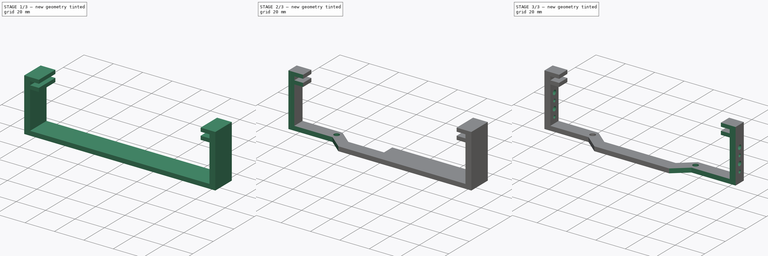
[diagram: build sequence overview — one tinted view per stage of 3, left to right]
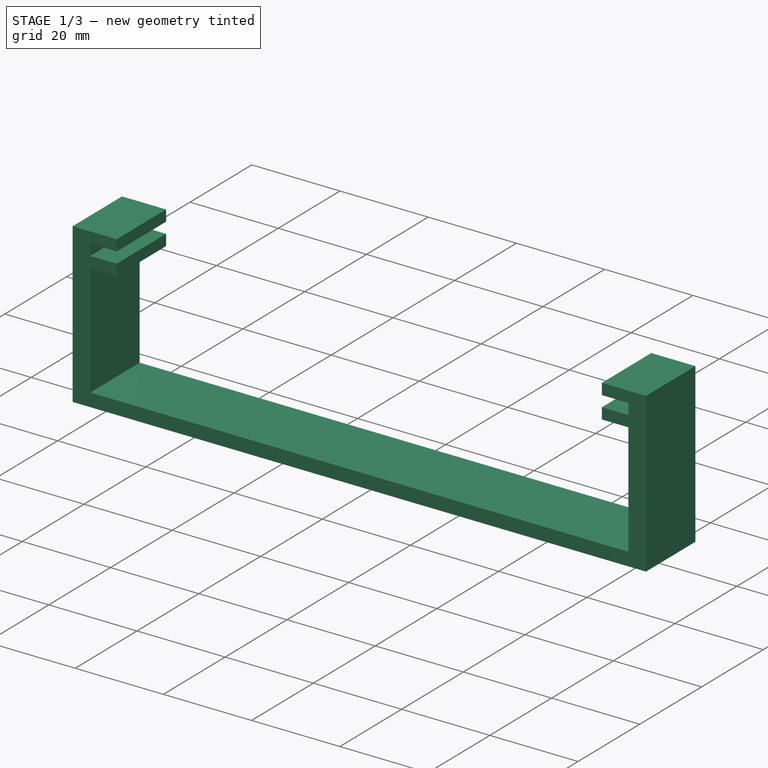
[diagram: stage 1 of 3 — iso view after this stage's code; geometry added in this stage tinted green]
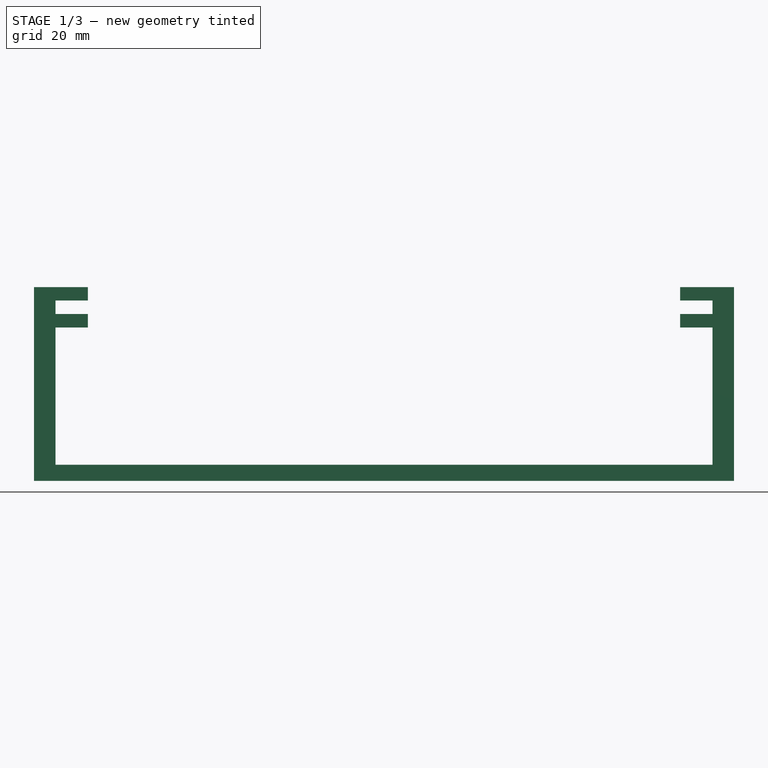
[diagram: stage 1 of 3 — front view after this stage's code; geometry added in this stage tinted green]
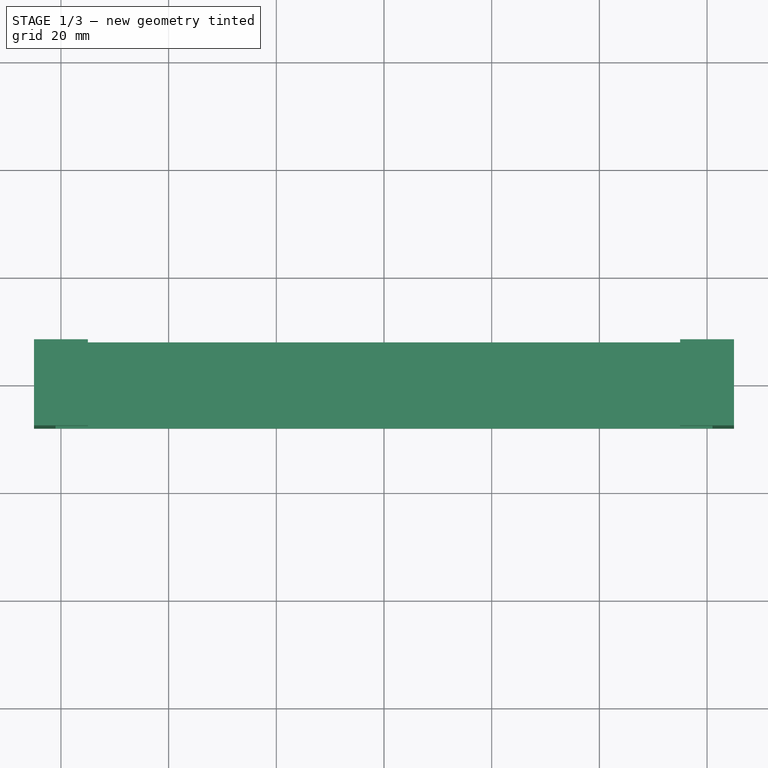
[diagram: stage 1 of 3 — top view after this stage's code; geometry added in this stage tinted green]
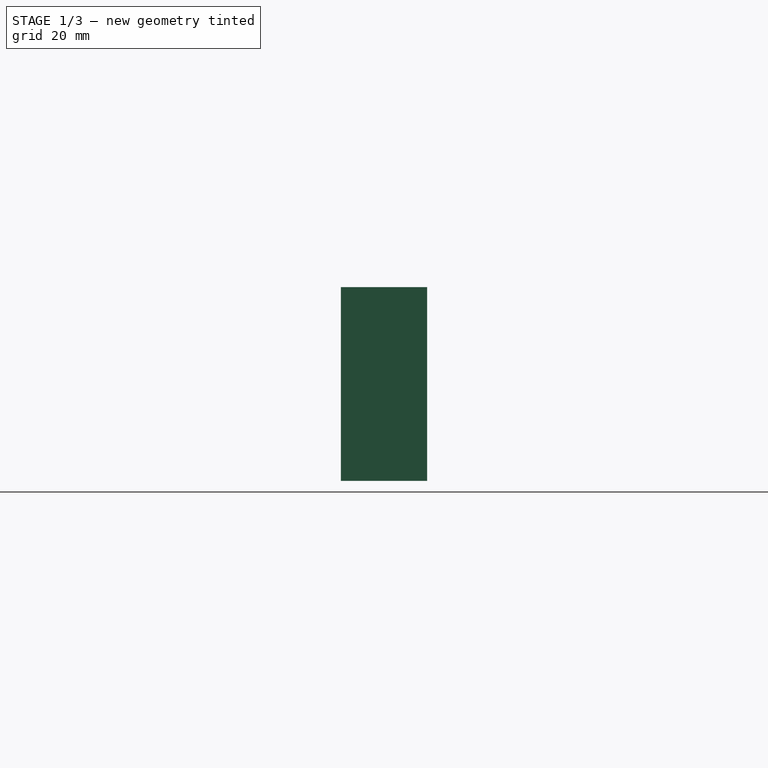
[diagram: stage 1 of 3 — right view after this stage's code; geometry added in this stage tinted green]
FCSTD DOCUMENT  (FreeCAD 0.18.4R)
Label: gpuintake
License: All rights reserved
LicenseURL: http://en.wikipedia.org/wiki/All_rights_reserved
objects: Sketcher::SketchObject×3, PartDesign::Mirrored×2, PartDesign::Pocket×2, PartDesign::Pad×1, PartDesign::Body×1
note: 12 computed .brp shape members not serialized (recipe doc carries the construction recipe); baked Part::Feature solids carry a one-line shape summary decoded from their .brp

FEATURE [Sketcher::SketchObject] Sketch001
  MapMode = 5
  Placement = pos=(0,0,0) rot=(1,0,0;1.5708rad)
  Support = -> [XZ_Plane]
  sketch-geometry (12):
    g0: LineSegment StartX=-65 StartY=36 StartZ=0 EndX=-65 EndY=0 EndZ=0
    g1: LineSegment StartX=-65 StartY=0 StartZ=0 EndX=0 EndY=0 EndZ=0
    g2: LineSegment StartX=0 StartY=0 StartZ=0 EndX=0 EndY=3 EndZ=0
    g3: LineSegment StartX=0 StartY=3 StartZ=0 EndX=-61 EndY=3 EndZ=0
    g4: LineSegment StartX=-61 StartY=3 StartZ=0 EndX=-61 EndY=28.5 EndZ=0
    g5: LineSegment StartX=-61 StartY=28.5 StartZ=0 EndX=-55 EndY=28.5 EndZ=0
    g6: LineSegment StartX=-55 StartY=28.5 StartZ=0 EndX=-55 EndY=31 EndZ=0
    g7: LineSegment StartX=-55 StartY=31 StartZ=0 EndX=-61 EndY=31 EndZ=0
    g8: LineSegment StartX=-61 StartY=31 StartZ=0 EndX=-61 EndY=33.5 EndZ=0
    g9: LineSegment StartX=-61 StartY=33.5 StartZ=0 EndX=-55 EndY=33.5 EndZ=0
    g10: LineSegment StartX=-55 StartY=33.5 StartZ=0 EndX=-55 EndY=36 EndZ=0
    g11: LineSegment StartX=-55 StartY=36 StartZ=0 EndX=-65 EndY=36 EndZ=0
  constraints (36):
    c: PointOnObject(g0,g-1)
    c: Vertical(g0)
    c: Coincident(g0,g1)
    c: PointOnObject(g1,g-1)
    c: Coincident(g1,g2)
    c: Vertical(g2)
    c: Coincident(g2,g3)
    c: Horizontal(g3)
    c: Coincident(g3,g4)
    c: Vertical(g4)
    c: Coincident(g4,g5)
    c: Horizontal(g5)
    c: Coincident(g5,g6)
    c: Vertical(g6)
    c: Coincident(g6,g7)
    c: Horizontal(g7)
    c: Coincident(g7,g8)
    c: Vertical(g8)
    c: Coincident(g8,g9)
    c: Horizontal(g9)
    c: Coincident(g9,g10)
    c: Vertical(g10)
    c: Coincident(g10,g11)
    c: Coincident(g11,g0)
    c: Horizontal(g11)
    c: Equal(g10,g8)
    c: Equal(g5,g7)
    c: DistanceY(g8,g8) = 2.5
    c: DistanceX(g7) = -61
    c: DistanceX(g5,g5) = 6
    c: DistanceX(g11,g11) = 10
    c: Equal(g9,g7)
    c: DistanceY(g2,g2) = 3
    c: DistanceX(g3,g3) = 61
    c: DistanceY(g4,g4) = 25.5
    c: Equal(g6,g10)
FEATURE [PartDesign::Pad] Pad
  Length = 16
  Length2 = 100
  Midplane = true
  Placement = pos=(0,0,0) rot=(1,0,0;1.5708rad)
  Profile = -> Sketch001
  Type = 0
FEATURE [PartDesign::Mirrored] Mirrored
  BaseFeature = -> Pad
  MirrorPlane = -> Sketch001 [V_Axis]
  Originals = -> [Pad]
  Placement = pos=(0,0,0) rot=(1,0,0;1.5708rad)
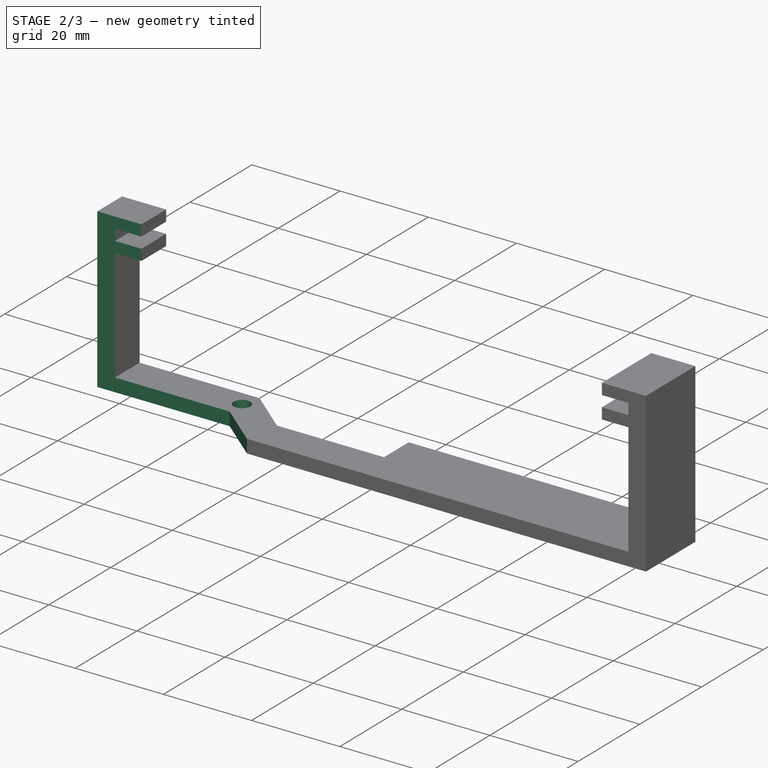
[diagram: stage 2 of 3 — iso view after this stage's code; geometry added in this stage tinted green]
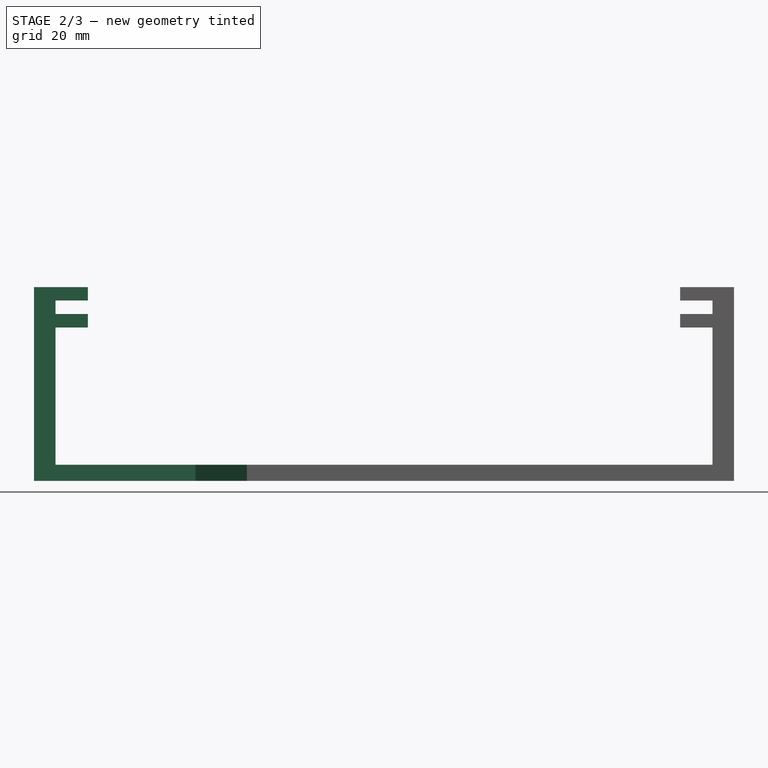
[diagram: stage 2 of 3 — front view after this stage's code; geometry added in this stage tinted green]
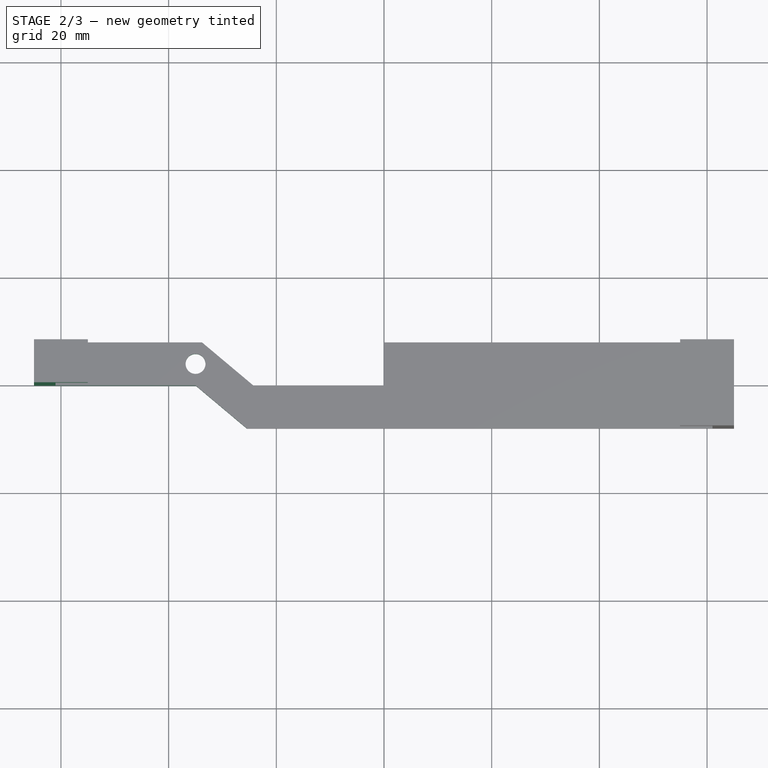
[diagram: stage 2 of 3 — top view after this stage's code; geometry added in this stage tinted green]
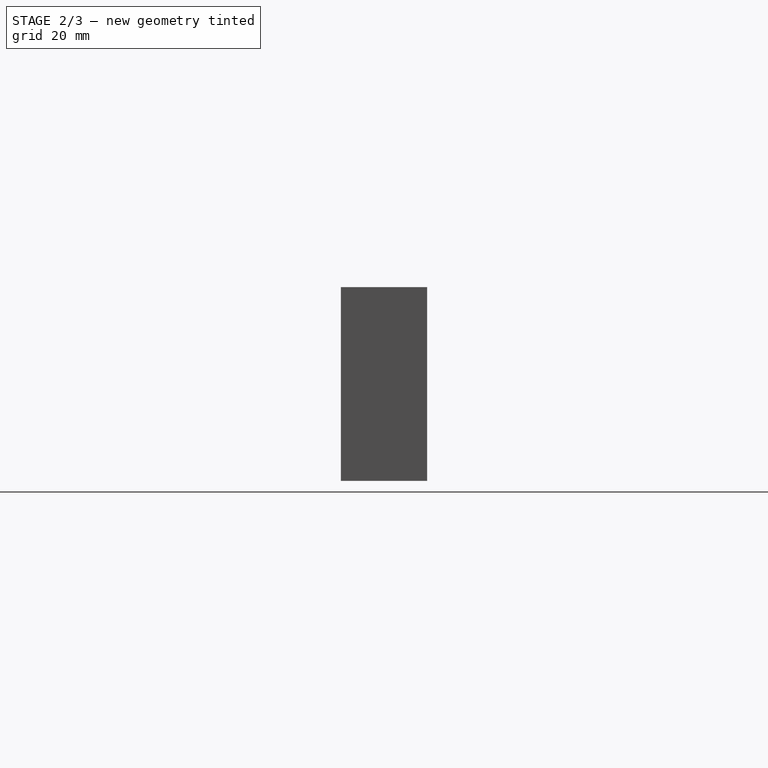
[diagram: stage 2 of 3 — right view after this stage's code; geometry added in this stage tinted green]
FEATURE [Sketcher::SketchObject] Sketch002
  AttachmentOffset = pos=(0,0,5) rot=(0,0,1;0rad)
  MapMode = 5
  Placement = pos=(0,0,5) rot=(0,0,1;0rad)
  Support = -> [XY_Plane]
  sketch-geometry (12):
    g0: Circle CenterX=-35 CenterY=4 CenterZ=0 NormalX=0 NormalY=0 NormalZ=1 AngleXU=0 Radius=1.85
    g1: Circle [constr] CenterX=35 CenterY=4 CenterZ=0 NormalX=0 NormalY=0 NormalZ=1 AngleXU=0 Radius=1.85
    g2: LineSegment [constr] StartX=-35 StartY=4 StartZ=0 EndX=35 EndY=4 EndZ=0
    g3: GeomPoint X=0 Y=4 Z=0
    g4: LineSegment StartX=-66 StartY=0 StartZ=0 EndX=-35 EndY=0 EndZ=0
    g5: LineSegment StartX=-35 StartY=0 StartZ=0 EndX=-24.2742 EndY=-9 EndZ=0
    g6: LineSegment StartX=-24.2742 StartY=-9 StartZ=0 EndX=-66 EndY=-9 EndZ=0
    g7: LineSegment StartX=-66 StartY=-9 StartZ=0 EndX=-66 EndY=0 EndZ=0
    g8: LineSegment StartX=-35 StartY=9 StartZ=0 EndX=-24.2742 EndY=0 EndZ=0
    g9: LineSegment StartX=-24.2742 StartY=0 StartZ=0 EndX=0 EndY=0 EndZ=0
    g10: LineSegment StartX=0 StartY=0 StartZ=0 EndX=0 EndY=9 EndZ=0
    g11: LineSegment StartX=0 StartY=9 StartZ=0 EndX=-35 EndY=9 EndZ=0
  constraints (32):
    c: Coincident(g2,g0)
    c: Coincident(g2,g1)
    c: DistanceX(g2,g2) = 70
    c: Symmetric(g0,g1,g-2)
    c: Diameter(g1) = 3.7
    c: Equal(g1,g0)
    c: PointOnObject(g3,g2)
    c: PointOnObject(g3,g-2)
    c: DistanceY(g-1,g3) = 4
    c: PointOnObject(g4,g-1)
    c: PointOnObject(g4,g-1)
    c: Coincident(g4,g5)
    c: Coincident(g5,g6)
    c: Horizontal(g6)
    c: Coincident(g6,g7)
    c: Coincident(g7,g4)
    c: Vertical(g7)
    c: Angle(g5,g6) = 0.698132
    c: Vertical(g4,g0)
    c: DistanceX(g4,g4) = 31
    c: DistanceY(g7,g7) = 9
    c: PointOnObject(g8,g-1)
    c: Coincident(g8,g9)
    c: Coincident(g9,g-1)
    c: Coincident(g9,g10)
    c: PointOnObject(g10,g-2)
    c: Coincident(g10,g11)
    c: Coincident(g11,g8)
    c: Horizontal(g11)
    c: Equal(g8,g5)
    c: Vertical(g8,g0)
    c: Parallel(g8,g5)
FEATURE [PartDesign::Pocket] Pocket  label="potong"
  BaseFeature = -> Mirrored
  Length = 5
  Length2 = 100
  Midplane = true
  Placement = pos=(0,0,0) rot=(1,0,0;1.5708rad)
  Profile = -> Sketch002
  Type = 1
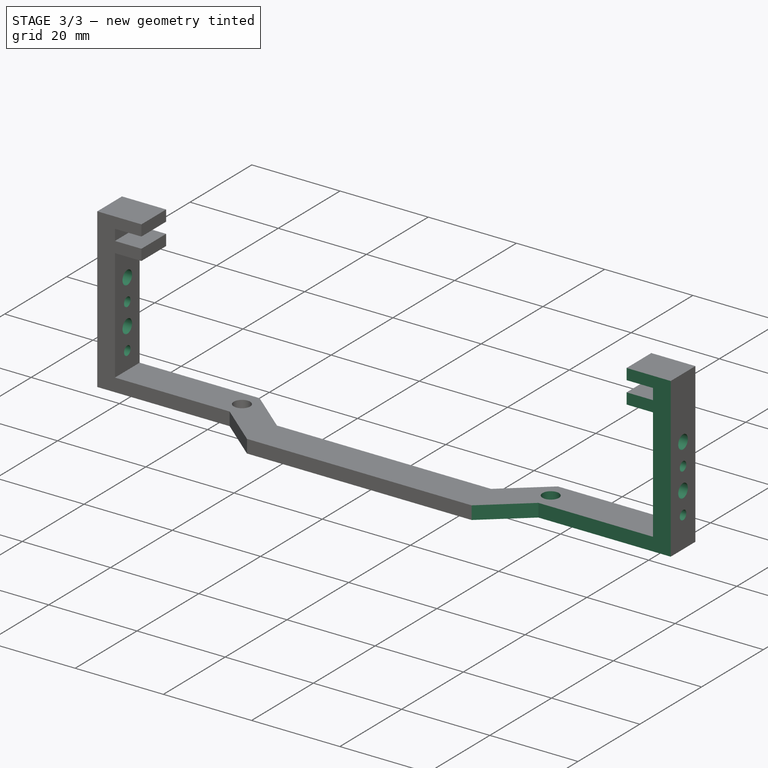
[diagram: stage 3 of 3 — iso view after this stage's code; geometry added in this stage tinted green]
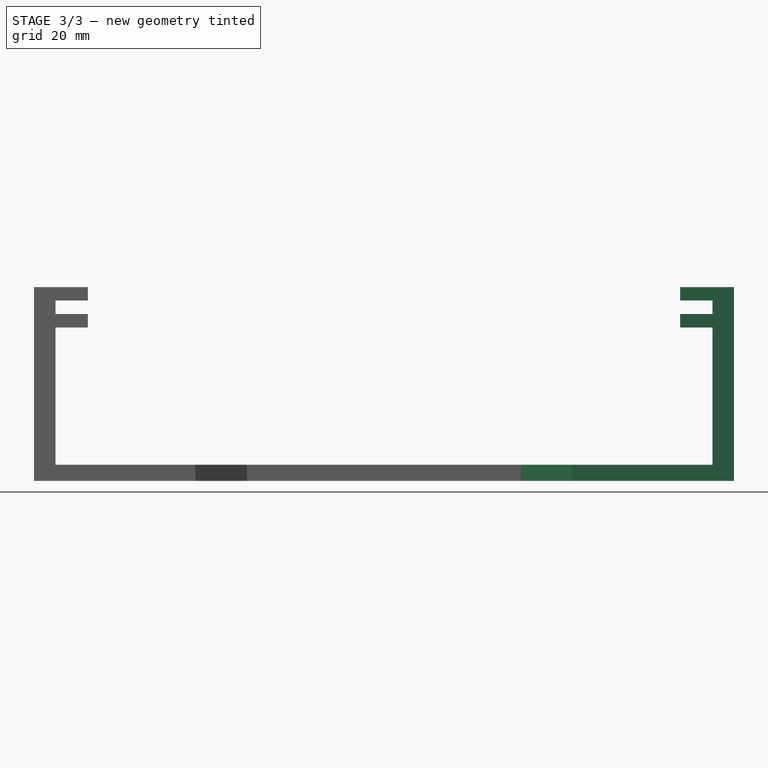
[diagram: stage 3 of 3 — front view after this stage's code; geometry added in this stage tinted green]
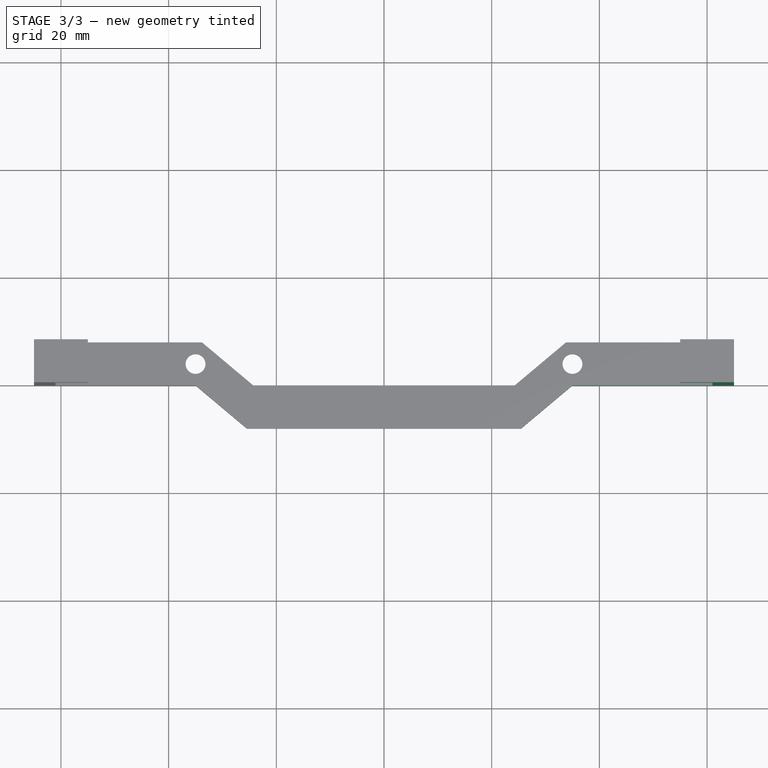
[diagram: stage 3 of 3 — top view after this stage's code; geometry added in this stage tinted green]
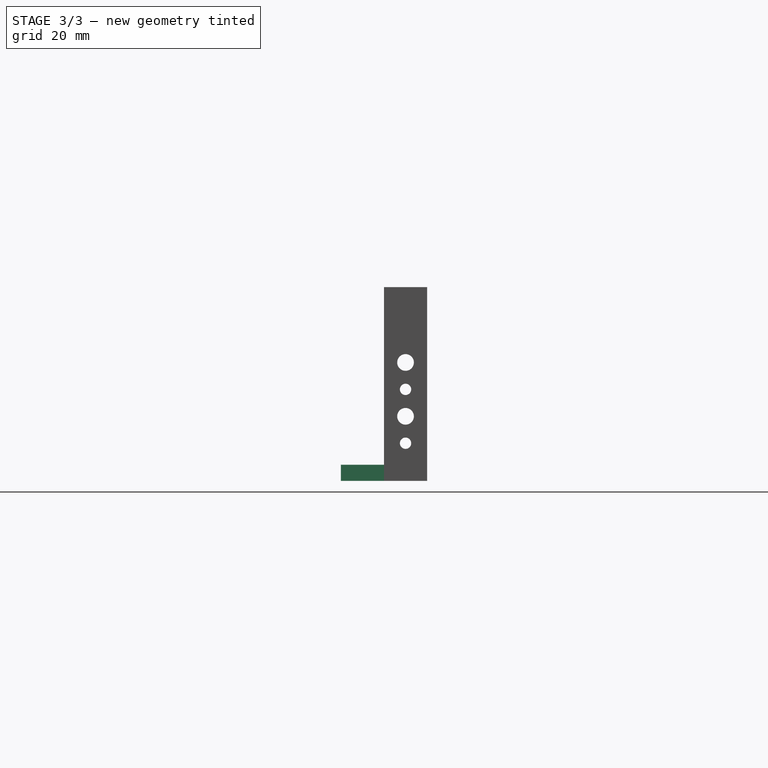
[diagram: stage 3 of 3 — right view after this stage's code; geometry added in this stage tinted green]
FEATURE [PartDesign::Mirrored] Mirrored001
  BaseFeature = -> Pocket
  MirrorPlane = -> Sketch002 [V_Axis]
  Originals = -> [Pocket]
  Placement = pos=(0,0,0) rot=(1,0,0;1.5708rad)
FEATURE [Sketcher::SketchObject] Sketch
  AttachmentOffset = pos=(0,0,70) rot=(0,0,1;0rad)
  MapMode = 5
  Placement = pos=(70,-1.55e-14,1.55e-14) rot=(0.57735,0.57735,0.57735;2.0944rad)
  Support = -> [YZ_Plane]
  sketch-geometry (5):
    g0: Circle CenterX=4 CenterY=12 CenterZ=0 NormalX=0 NormalY=0 NormalZ=1 AngleXU=0 Radius=1.55
    g1: Circle CenterX=4 CenterY=7 CenterZ=0 NormalX=0 NormalY=0 NormalZ=1 AngleXU=0 Radius=1.05
    g2: Circle CenterX=4 CenterY=17 CenterZ=0 NormalX=0 NormalY=0 NormalZ=1 AngleXU=0 Radius=1.05
    g3: Circle CenterX=4 CenterY=22 CenterZ=0 NormalX=0 NormalY=0 NormalZ=1 AngleXU=0 Radius=1.55
    g4: LineSegment [constr] StartX=4 StartY=22 StartZ=0 EndX=4 EndY=7 EndZ=0
  constraints (14):
    c: Vertical(g1,g0)
    c: Diameter(g0) = 3.1
    c: Diameter(g1) = 2.1
    c: DistanceY(g1,g0) = 5
    c: DistanceY(g1) = 7
    c: DistanceX(g1) = 4
    c: Coincident(g4,g3)
    c: Coincident(g4,g1)
    c: Vertical(g4)
    c: PointOnObject(g2,g4)
    c: Equal(g2,g1)
    c: Equal(g3,g0)
    c: DistanceY(g0,g2) = 5
    c: DistanceY(g2,g3) = 5
FEATURE [PartDesign::Pocket] Pocket001
  BaseFeature = -> Mirrored001
  Length = 5
  Length2 = 100
  Placement = pos=(0,0,0) rot=(1,0,0;1.5708rad)
  Profile = -> Sketch
  Type = 1
FEATURE [PartDesign::Body] Body  label="fanholder"
  Group = -> [Sketch001,Pad,Mirrored,Sketch002,Pocket,Mirrored001,Sketch,Pocket001]
  Origin = -> Origin
  Tip = -> Pocket001
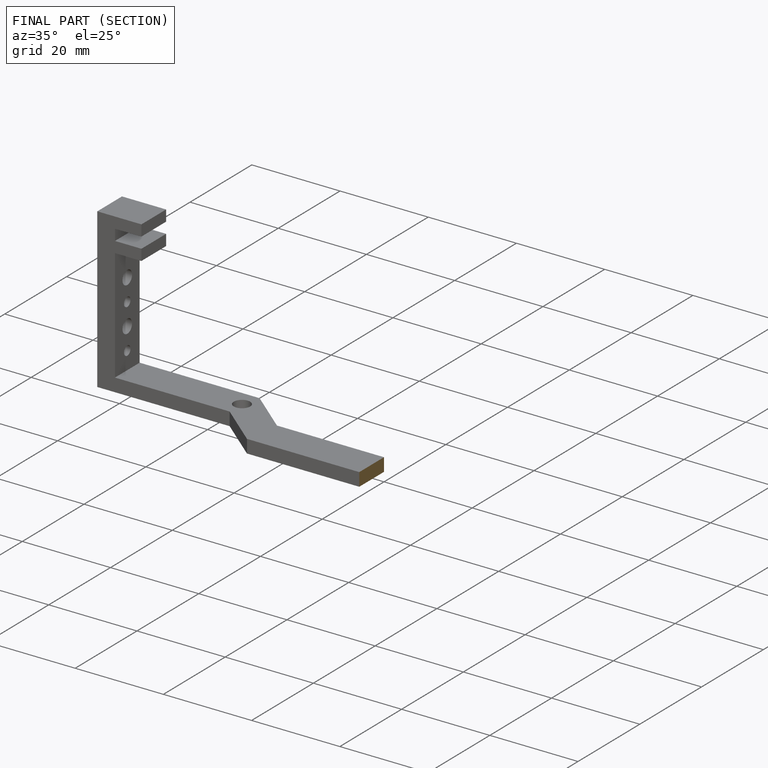
[diagram: finished part — half-section view (interior)]
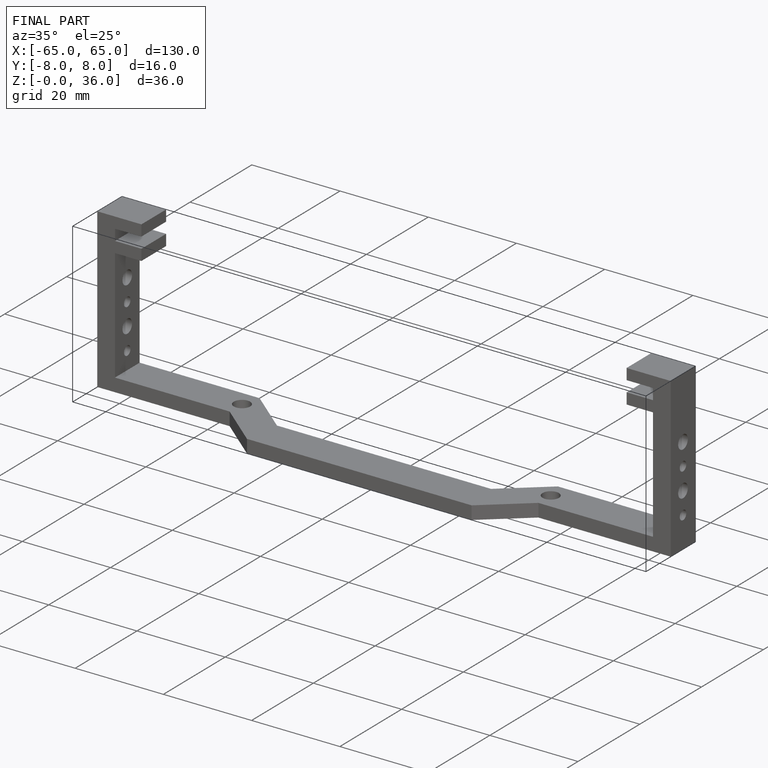
[diagram: finished part — iso view with bounding-box wireframe]
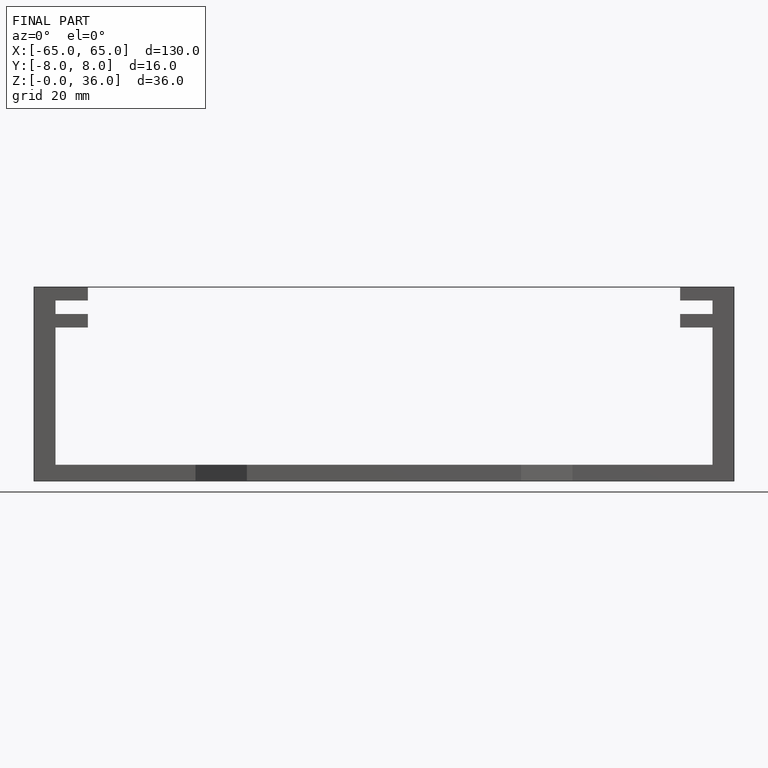
[diagram: finished part — front view with bounding-box wireframe]
